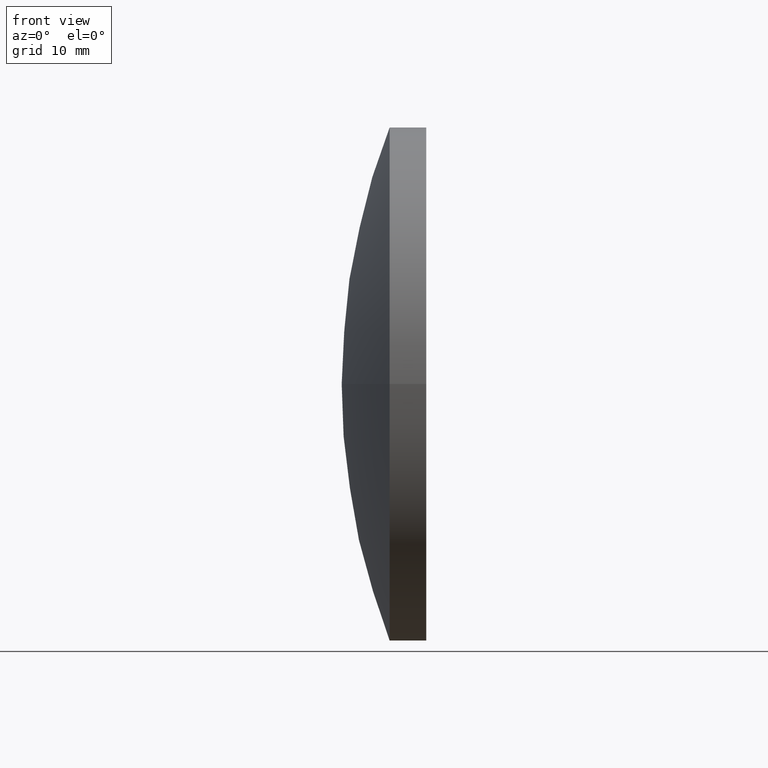
[diagram: clean part render]
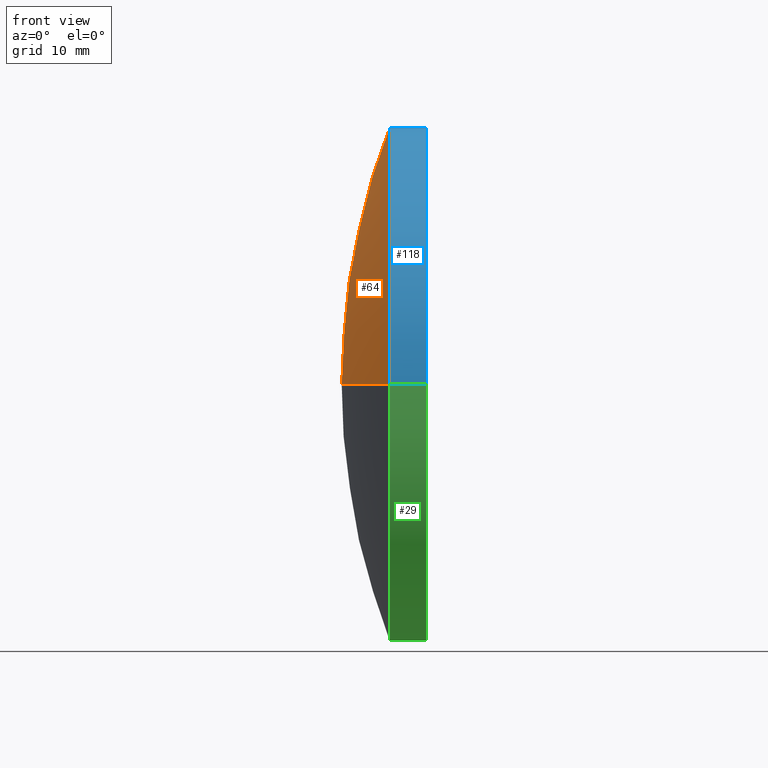
[diagram: same view with three faces highlighted in distinct colors, each labeled with its STEP entity id]
A machine part, front view with three faces highlighted in distinct colors.
Their STEP definitions:

[orange] entity #64 — the highlighted spherical surface has radius 69.4 mm.
#6 = CARTESIAN_POINT ( 'NONE',  ( 314.6821311214902200, 130.4336809418806800, 0.0000000000000000000 ) ) ;
#7 = VERTEX_POINT ( 'NONE', #156 ) ;
#9 = ORIENTED_EDGE ( 'NONE', *, *, #28, .F. ) ;
#16 = SPHERICAL_SURFACE ( 'NONE', #98, 69.40000000000002000 ) ;
#19 = CARTESIAN_POINT ( 'NONE',  ( 249.9414175016976000, 105.4336809418807400, -3.061616997868370400E-015 ) ) ;
#20 = EDGE_CURVE ( 'NONE', #149, #7, #119, .T. ) ;
#25 = DIRECTION ( 'NONE',  ( -0.0000000000000000000, 0.0000000000000000000, 1.000000000000000000 ) ) ;
#28 = EDGE_CURVE ( 'NONE', #149, #92, #36, .T. ) ;
#34 = DIRECTION ( 'NONE',  ( -1.000000000000000000, -6.937607244762875000E-016, -0.0000000000000000000 ) ) ;
#36 = CIRCLE ( 'NONE', #133, 69.40000000000002000 ) ;
#38 = EDGE_CURVE ( 'NONE', #7, #92, #131, .T. ) ;
#41 = CARTESIAN_POINT ( 'NONE',  ( 245.2821311214902100, 130.4336809418806200, 0.0000000000000000000 ) ) ;
#54 = DIRECTION ( 'NONE',  ( -0.0000000000000000000, 0.0000000000000000000, -1.000000000000000000 ) ) ;
#58 = CARTESIAN_POINT ( 'NONE',  ( 314.6821311214902200, 130.4336809418806800, 0.0000000000000000000 ) ) ;
#64 = ADVANCED_FACE ( 'NONE', ( #173 ), #16, .T. ) ;
#67 = ORIENTED_EDGE ( 'NONE', *, *, #38, .T. ) ;
#68 = DIRECTION ( 'NONE',  ( 1.110223024625159900E-015, -1.000000000000000000, 0.0000000000000000000 ) ) ;
#87 = DIRECTION ( 'NONE',  ( -8.496118506040342700E-032, 1.224646799147353200E-016, -1.000000000000000000 ) ) ;
#88 = ORIENTED_EDGE ( 'NONE', *, *, #20, .T. ) ;
#92 = VERTEX_POINT ( 'NONE', #41 ) ;
#93 = AXIS2_PLACEMENT_3D ( 'NONE', #58, #25, #185 ) ;
#94 = AXIS2_PLACEMENT_3D ( 'NONE', #112, #34, #68 ) ;
#98 = AXIS2_PLACEMENT_3D ( 'NONE', #188, #54, #132 ) ;
#103 = EDGE_LOOP ( 'NONE', ( #9, #88, #67 ) ) ;
#112 = CARTESIAN_POINT ( 'NONE',  ( 249.9414175016976000, 130.4336809418806500, 0.0000000000000000000 ) ) ;
#119 = CIRCLE ( 'NONE', #94, 24.99999999999992500 ) ;
#131 = CIRCLE ( 'NONE', #93, 69.40000000000002000 ) ;
#132 = DIRECTION ( 'NONE',  ( -7.998724961276342300E-016, 1.000000000000000000, 0.0000000000000000000 ) ) ;
#133 = AXIS2_PLACEMENT_3D ( 'NONE', #6, #87, #177 ) ;
#149 = VERTEX_POINT ( 'NONE', #19 ) ;
#156 = CARTESIAN_POINT ( 'NONE',  ( 249.9414175016975700, 155.4336809418805700, 0.0000000000000000000 ) ) ;
#173 = FACE_OUTER_BOUND ( 'NONE', #103, .T. ) ;
#177 = DIRECTION ( 'NONE',  ( 0.0000000000000000000, 1.000000000000000000, 1.224646799147353200E-016 ) ) ;
#185 = DIRECTION ( 'NONE',  ( 1.000000000000000000, 0.0000000000000000000, 0.0000000000000000000 ) ) ;
#188 = CARTESIAN_POINT ( 'NONE',  ( 314.6821311214902200, 130.4336809418806800, 0.0000000000000000000 ) ) ;

[blue] entity #118 — the highlighted cylindrical surface (partial cylindrical patch) has radius 25 mm, axis along (-1, -0, -0).
#7 = VERTEX_POINT ( 'NONE', #156 ) ;
#18 = CYLINDRICAL_SURFACE ( 'NONE', #120, 24.99999999999994000 ) ;
#19 = CARTESIAN_POINT ( 'NONE',  ( 249.9414175016976000, 105.4336809418807400, -3.061616997868370400E-015 ) ) ;
#20 = EDGE_CURVE ( 'NONE', #149, #7, #119, .T. ) ;
#34 = DIRECTION ( 'NONE',  ( -1.000000000000000000, -6.937607244762875000E-016, -0.0000000000000000000 ) ) ;
#37 = VERTEX_POINT ( 'NONE', #186 ) ;
#46 = ORIENTED_EDGE ( 'NONE', *, *, #20, .F. ) ;
#62 = EDGE_LOOP ( 'NONE', ( #121, #164, #46, #123 ) ) ;
#65 = VERTEX_POINT ( 'NONE', #144 ) ;
#68 = DIRECTION ( 'NONE',  ( 1.110223024625159900E-015, -1.000000000000000000, 0.0000000000000000000 ) ) ;
#72 = CARTESIAN_POINT ( 'NONE',  ( 231.8889825959263400, 130.4336809418806500, 0.0000000000000000000 ) ) ;
#82 = VECTOR ( 'NONE', #152, 1000.000000000000000 ) ;
#83 = EDGE_CURVE ( 'NONE', #37, #65, #95, .T. ) ;
#84 = FACE_OUTER_BOUND ( 'NONE', #62, .T. ) ;
#89 = AXIS2_PLACEMENT_3D ( 'NONE', #99, #147, #102 ) ;
#90 = CARTESIAN_POINT ( 'NONE',  ( 231.8889825959263600, 105.4336809418807100, 0.0000000000000000000 ) ) ;
#94 = AXIS2_PLACEMENT_3D ( 'NONE', #112, #34, #68 ) ;
#95 = CIRCLE ( 'NONE', #89, 24.99999999999995400 ) ;
#99 = CARTESIAN_POINT ( 'NONE',  ( 253.5064541684908200, 130.4336809418806800, 0.0000000000000000000 ) ) ;
#102 = DIRECTION ( 'NONE',  ( 0.0000000000000000000, -1.000000000000000000, 0.0000000000000000000 ) ) ;
#112 = CARTESIAN_POINT ( 'NONE',  ( 249.9414175016976000, 130.4336809418806500, 0.0000000000000000000 ) ) ;
#116 = DIRECTION ( 'NONE',  ( 1.110223024625159300E-015, -1.000000000000000000, 0.0000000000000000000 ) ) ;
#118 = ADVANCED_FACE ( 'NONE', ( #84 ), #18, .T. ) ;
#119 = CIRCLE ( 'NONE', #94, 24.99999999999992500 ) ;
#120 = AXIS2_PLACEMENT_3D ( 'NONE', #72, #178, #116 ) ;
#121 = ORIENTED_EDGE ( 'NONE', *, *, #83, .T. ) ;
#123 = ORIENTED_EDGE ( 'NONE', *, *, #134, .F. ) ;
#134 = EDGE_CURVE ( 'NONE', #37, #149, #170, .T. ) ;
#136 = VECTOR ( 'NONE', #189, 1000.000000000000000 ) ;
#143 = CARTESIAN_POINT ( 'NONE',  ( 231.8889825959263100, 155.4336809418806000, 3.061616997868375500E-015 ) ) ;
#144 = CARTESIAN_POINT ( 'NONE',  ( 253.5064541684908200, 155.4336809418807900, 0.0000000000000000000 ) ) ;
#147 = DIRECTION ( 'NONE',  ( -1.000000000000000000, -6.937607244762875000E-016, -0.0000000000000000000 ) ) ;
#149 = VERTEX_POINT ( 'NONE', #19 ) ;
#150 = EDGE_CURVE ( 'NONE', #65, #7, #192, .T. ) ;
#152 = DIRECTION ( 'NONE',  ( -1.000000000000000000, -6.937607244762875000E-016, -0.0000000000000000000 ) ) ;
#156 = CARTESIAN_POINT ( 'NONE',  ( 249.9414175016975700, 155.4336809418805700, 0.0000000000000000000 ) ) ;
#164 = ORIENTED_EDGE ( 'NONE', *, *, #150, .T. ) ;
#170 = LINE ( 'NONE', #90, #136 ) ;
#178 = DIRECTION ( 'NONE',  ( -1.000000000000000000, -6.937607244762875000E-016, -0.0000000000000000000 ) ) ;
#186 = CARTESIAN_POINT ( 'NONE',  ( 253.5064541684908200, 105.4336809418804000, -3.061616997868395700E-015 ) ) ;
#189 = DIRECTION ( 'NONE',  ( -1.000000000000000000, -6.937607244762875000E-016, -0.0000000000000000000 ) ) ;
#192 = LINE ( 'NONE', #143, #82 ) ;

[green] entity #29 — the highlighted cylindrical surface (partial cylindrical patch) has radius 25 mm, axis along (-1, -0, -0).
#1 = CIRCLE ( 'NONE', #110, 24.99999999999995400 ) ;
#2 = AXIS2_PLACEMENT_3D ( 'NONE', #172, #174, #10 ) ;
#5 = DIRECTION ( 'NONE',  ( -1.000000000000000000, -6.937607244762875000E-016, -0.0000000000000000000 ) ) ;
#7 = VERTEX_POINT ( 'NONE', #156 ) ;
#10 = DIRECTION ( 'NONE',  ( 1.110223024625159300E-015, -1.000000000000000000, 0.0000000000000000000 ) ) ;
#19 = CARTESIAN_POINT ( 'NONE',  ( 249.9414175016976000, 105.4336809418807400, -3.061616997868370400E-015 ) ) ;
#23 = EDGE_CURVE ( 'NONE', #65, #37, #1, .T. ) ;
#26 = AXIS2_PLACEMENT_3D ( 'NONE', #148, #71, #101 ) ;
#29 = ADVANCED_FACE ( 'NONE', ( #45 ), #55, .T. ) ;
#37 = VERTEX_POINT ( 'NONE', #186 ) ;
#43 = CIRCLE ( 'NONE', #26, 24.99999999999992500 ) ;
#45 = FACE_OUTER_BOUND ( 'NONE', #184, .T. ) ;
#51 = ORIENTED_EDGE ( 'NONE', *, *, #134, .T. ) ;
#55 = CYLINDRICAL_SURFACE ( 'NONE', #2, 24.99999999999994000 ) ;
#65 = VERTEX_POINT ( 'NONE', #144 ) ;
#71 = DIRECTION ( 'NONE',  ( -1.000000000000000000, -6.937607244762875000E-016, -0.0000000000000000000 ) ) ;
#73 = ORIENTED_EDGE ( 'NONE', *, *, #100, .F. ) ;
#79 = ORIENTED_EDGE ( 'NONE', *, *, #23, .T. ) ;
#82 = VECTOR ( 'NONE', #152, 1000.000000000000000 ) ;
#90 = CARTESIAN_POINT ( 'NONE',  ( 231.8889825959263600, 105.4336809418807100, 0.0000000000000000000 ) ) ;
#100 = EDGE_CURVE ( 'NONE', #7, #149, #43, .T. ) ;
#101 = DIRECTION ( 'NONE',  ( 1.110223024625159900E-015, -1.000000000000000000, 0.0000000000000000000 ) ) ;
#110 = AXIS2_PLACEMENT_3D ( 'NONE', #176, #5, #113 ) ;
#113 = DIRECTION ( 'NONE',  ( 0.0000000000000000000, -1.000000000000000000, 0.0000000000000000000 ) ) ;
#134 = EDGE_CURVE ( 'NONE', #37, #149, #170, .T. ) ;
#136 = VECTOR ( 'NONE', #189, 1000.000000000000000 ) ;
#143 = CARTESIAN_POINT ( 'NONE',  ( 231.8889825959263100, 155.4336809418806000, 3.061616997868375500E-015 ) ) ;
#144 = CARTESIAN_POINT ( 'NONE',  ( 253.5064541684908200, 155.4336809418807900, 0.0000000000000000000 ) ) ;
#148 = CARTESIAN_POINT ( 'NONE',  ( 249.9414175016976000, 130.4336809418806500, 0.0000000000000000000 ) ) ;
#149 = VERTEX_POINT ( 'NONE', #19 ) ;
#150 = EDGE_CURVE ( 'NONE', #65, #7, #192, .T. ) ;
#152 = DIRECTION ( 'NONE',  ( -1.000000000000000000, -6.937607244762875000E-016, -0.0000000000000000000 ) ) ;
#156 = CARTESIAN_POINT ( 'NONE',  ( 249.9414175016975700, 155.4336809418805700, 0.0000000000000000000 ) ) ;
#170 = LINE ( 'NONE', #90, #136 ) ;
#172 = CARTESIAN_POINT ( 'NONE',  ( 231.8889825959263400, 130.4336809418806500, 0.0000000000000000000 ) ) ;
#174 = DIRECTION ( 'NONE',  ( -1.000000000000000000, -6.937607244762875000E-016, -0.0000000000000000000 ) ) ;
#176 = CARTESIAN_POINT ( 'NONE',  ( 253.5064541684908200, 130.4336809418806800, 0.0000000000000000000 ) ) ;
#181 = ORIENTED_EDGE ( 'NONE', *, *, #150, .F. ) ;
#184 = EDGE_LOOP ( 'NONE', ( #181, #79, #51, #73 ) ) ;
#186 = CARTESIAN_POINT ( 'NONE',  ( 253.5064541684908200, 105.4336809418804000, -3.061616997868395700E-015 ) ) ;
#189 = DIRECTION ( 'NONE',  ( -1.000000000000000000, -6.937607244762875000E-016, -0.0000000000000000000 ) ) ;
#192 = LINE ( 'NONE', #143, #82 ) ;